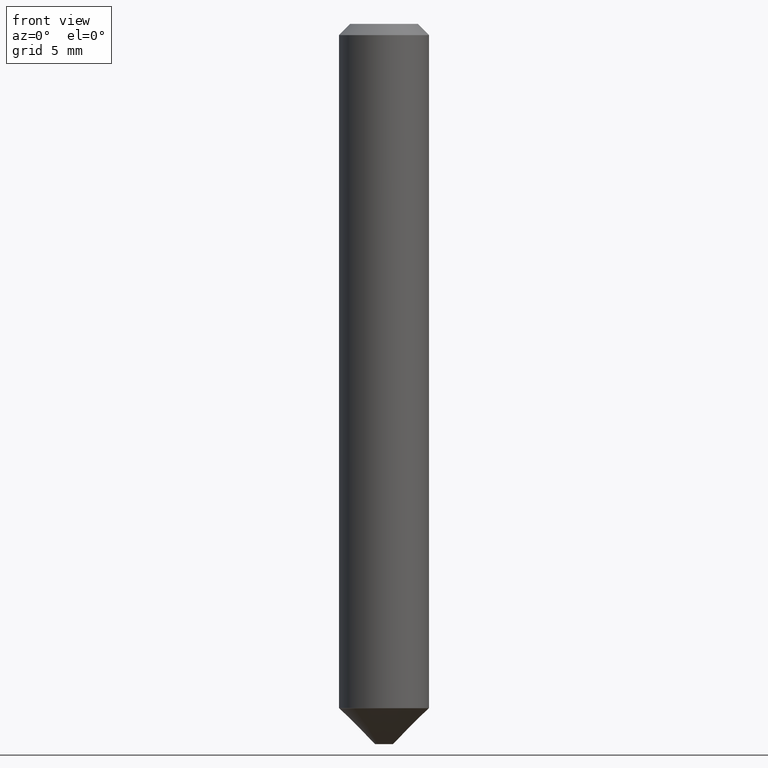
[diagram: clean part render]
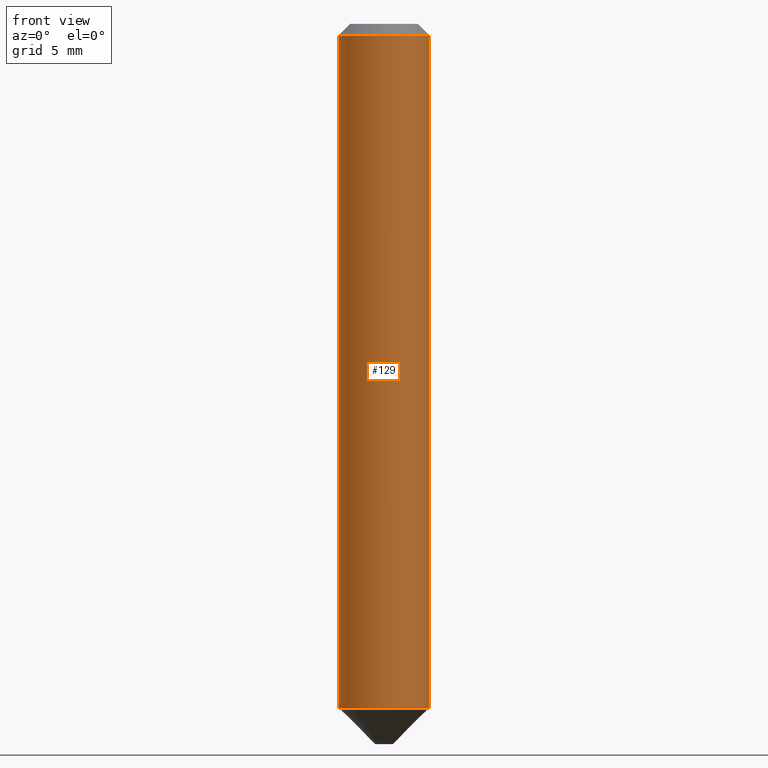
[diagram: same view with one face highlighted and labeled with its STEP entity id]
A machine part, front view. The second image highlights one B-rep face of the part: STEP entity #129.
In plain terms, the highlighted cylindrical surface (partial cylindrical patch) has radius 3.175 mm, axis along (-0, 0, 1).
Its self-contained STEP definition (entity closure, byte-faithful):
#64 = VERTEX_POINT ( 'NONE', #131 ) ;
#77 = CARTESIAN_POINT ( 'NONE',  ( 7.642090019328606165E-31, -1.091087918388490760E-16, -0.03125000000000022204 ) ) ;
#86 = ORIENTED_EDGE ( 'NONE', *, *, #180, .F. ) ;
#94 = VECTOR ( 'NONE', #318, 39.37007874015748143 ) ;
#105 = CARTESIAN_POINT ( 'NONE',  ( 0.1250000000000002498, -7.504939137843339665E-15, -1.899499999999999966 ) ) ;
#112 = DIRECTION ( 'NONE',  ( 1.000000000000000000, -6.982962677686266711E-15, 4.876176775795935793E-29 ) ) ;
#129 = ADVANCED_FACE ( 'NONE', ( #243 ), #400, .T. ) ;
#131 = CARTESIAN_POINT ( 'NONE',  ( -0.1250000000000002498, -5.743890383432428727E-15, -1.899499999999999966 ) ) ;
#140 = CIRCLE ( 'NONE', #275, 0.1250000000000000278 ) ;
#153 = CARTESIAN_POINT ( 'NONE',  ( -0.1250000000000000278, -2.482410377785575114E-15, -0.03125000000000022204 ) ) ;
#166 = AXIS2_PLACEMENT_3D ( 'NONE', #304, #392, #245 ) ;
#172 = DIRECTION ( 'NONE',  ( 1.000000000000000000, -6.982962677686265922E-15, 0.000000000000000000 ) ) ;
#176 = DIRECTION ( 'NONE',  ( -2.445468806185136597E-29, 3.491481338843145583E-15, 1.000000000000000000 ) ) ;
#180 = EDGE_CURVE ( 'NONE', #246, #266, #140, .T. ) ;
#181 = CARTESIAN_POINT ( 'NONE',  ( 0.1250000000000000278, -9.819791265496326367E-16, -0.03125000000000022204 ) ) ;
#184 = DIRECTION ( 'NONE',  ( -2.445468806185136877E-29, 3.491481338843145188E-15, 1.000000000000000000 ) ) ;
#200 = EDGE_CURVE ( 'NONE', #64, #223, #265, .T. ) ;
#211 = DIRECTION ( 'NONE',  ( -2.445468806185136597E-29, 3.491481338843145583E-15, 1.000000000000000000 ) ) ;
#216 = VECTOR ( 'NONE', #184, 39.37007874015748143 ) ;
#223 = VERTEX_POINT ( 'NONE', #105 ) ;
#225 = CARTESIAN_POINT ( 'NONE',  ( -0.1250000000000001388, 8.881784197001262184E-16, -6.148668862818638533E-30 ) ) ;
#243 = FACE_OUTER_BOUND ( 'NONE', #339, .T. ) ;
#245 = DIRECTION ( 'NONE',  ( 1.000000000000000000, -6.982962677686264344E-15, 0.000000000000000000 ) ) ;
#246 = VERTEX_POINT ( 'NONE', #153 ) ;
#252 = ORIENTED_EDGE ( 'NONE', *, *, #200, .T. ) ;
#259 = LINE ( 'NONE', #225, #216 ) ;
#265 = CIRCLE ( 'NONE', #166, 0.1250000000000002498 ) ;
#266 = VERTEX_POINT ( 'NONE', #181 ) ;
#269 = ORIENTED_EDGE ( 'NONE', *, *, #303, .F. ) ;
#275 = AXIS2_PLACEMENT_3D ( 'NONE', #77, #176, #172 ) ;
#303 = EDGE_CURVE ( 'NONE', #64, #246, #259, .T. ) ;
#304 = CARTESIAN_POINT ( 'NONE',  ( 4.645167997348666620E-29, -6.632068803132554748E-15, -1.899499999999999966 ) ) ;
#312 = AXIS2_PLACEMENT_3D ( 'NONE', #330, #211, #112 ) ;
#318 = DIRECTION ( 'NONE',  ( -2.445468806185136877E-29, 3.491481338843145188E-15, 1.000000000000000000 ) ) ;
#330 = CARTESIAN_POINT ( 'NONE',  ( 0.000000000000000000, 0.000000000000000000, 0.000000000000000000 ) ) ;
#339 = EDGE_LOOP ( 'NONE', ( #269, #252, #363, #86 ) ) ;
#340 = CARTESIAN_POINT ( 'NONE',  ( 0.1250000000000001388, -8.728703347107843249E-16, 6.095220969744926748E-30 ) ) ;
#348 = EDGE_CURVE ( 'NONE', #223, #266, #409, .T. ) ;
#363 = ORIENTED_EDGE ( 'NONE', *, *, #348, .T. ) ;
#392 = DIRECTION ( 'NONE',  ( -2.445468806185136597E-29, 3.491481338843145583E-15, 1.000000000000000000 ) ) ;
#400 = CYLINDRICAL_SURFACE ( 'NONE', #312, 0.1250000000000001388 ) ;
#409 = LINE ( 'NONE', #340, #94 ) ;